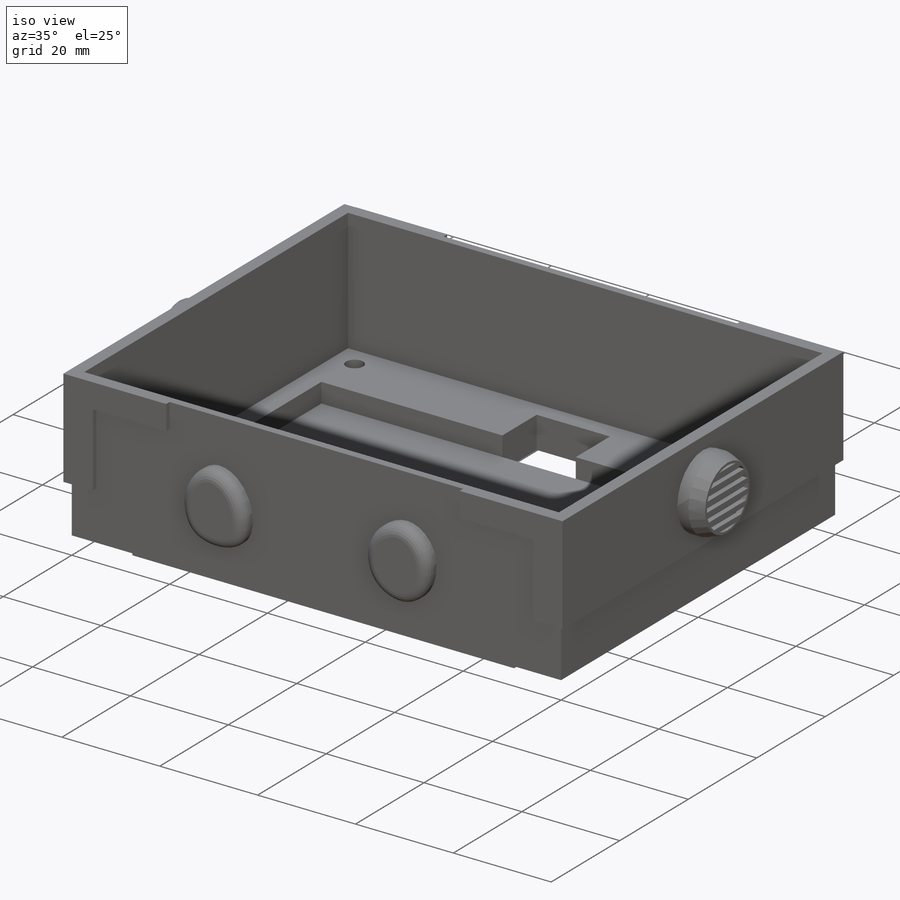
[diagram: iso view]
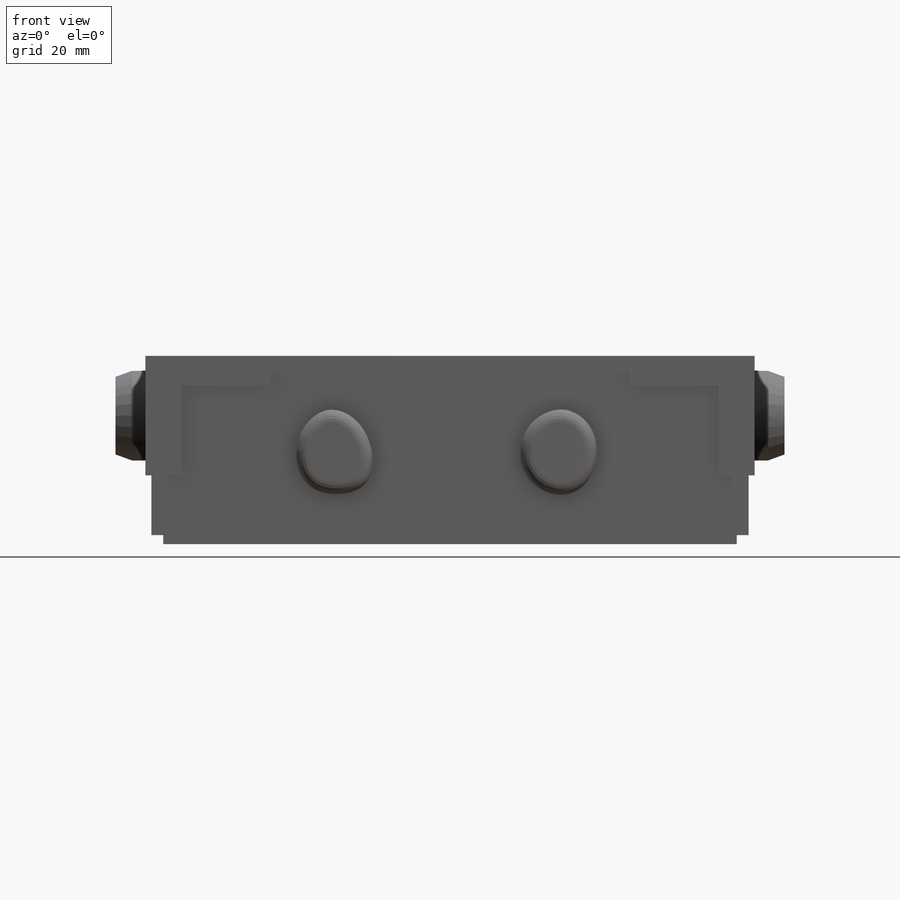
[diagram: front view]
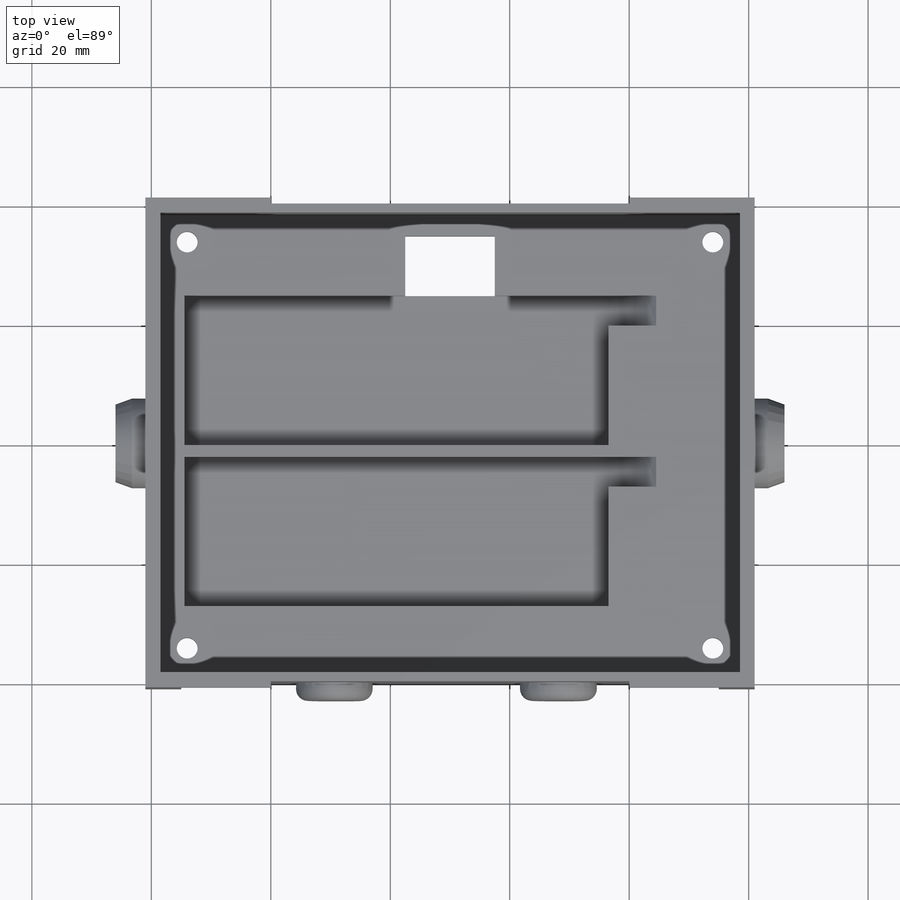
[diagram: top view]
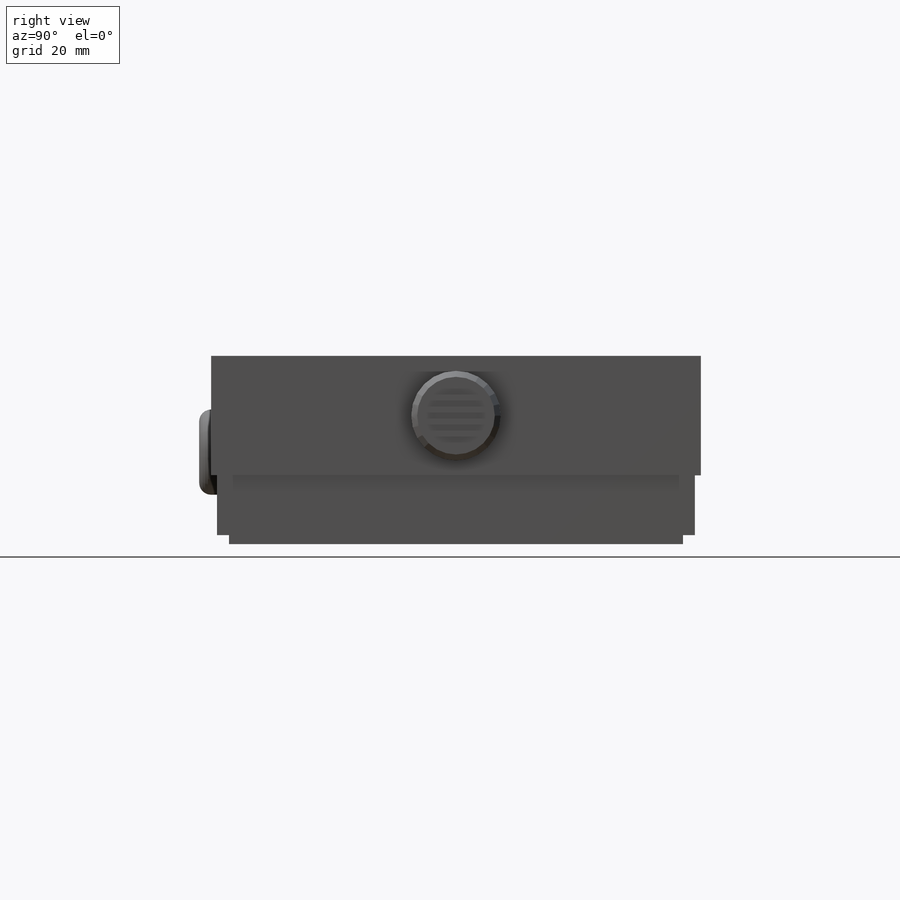
[diagram: right view]
SOLIDWORKS PART (.sldprt)
format: sldprt  version: not decoded by parser v0  size: 689,664 bytes
history: native  units: mm
features: sketch x14, extrude x10, cut_extrude x4, plane x3, fillet x2, material x1, chamfer x1 (+10 scaffold rows collapsed)
feature tree (45):
  scaffold x10  (default folders/planes/origin — collapsed)
  material  "Matériau <non spécifié>"
  plane  "Plan de face"
  plane  "Plan de dessus"
  plane  "Plan de droite"
  sketch  "Esquisse1"  dims[D1=80.0mm D2=100.0mm D3=20.0mm D4=39.0mm D5=20.0mm D6=39.0mm D7=15.0mm D8=15.0mm D9=30.0mm D10=30.0mm D11=15.0mm D12=10.0mm D13=42.5mm D14=5.0mm]
  extrude  "Boss.-Extru.2"  Depth=5mm
  sketch  "Esquisse2"  dims[c1.D1=1.5mm c1.D2=1.5mm c1.D3=1.5mm c1.D4=1.5mm c1.D5=9.0mm c1.D6=9.0mm c1.D7=5.0mm c2.D5=10.0mm c2.D7=9.0mm c2.D8=5.0mm c2.D9=3.5mm c2.D10=2.5mm c2.D11=2.5mm c2.D12=1.5mm]
  extrude  "Boss.-Extru.3"  Depth=25mm
  sketch  "Esquisse9"  dims[D1=2.0mm D2=2.0mm D3=2.0mm D4=2.0mm D5=9.0mm D6=9.0mm D7=9.0mm D8=9.0mm D9=9.0mm D10=9.0mm D11=9.0mm D12=9.0mm]
  extrude  "Boss.-Extru.5"  Depth=1.5mm
  sketch  "Esquisse11"  dims[c1.D1=76.5mm c1.D2=76.5mm c1.D3=25.0mm c1.D4=25.0mm c1.D5=11.5mm c1.D6=25.0mm c2.D6=90.0deg c3.D6=25.0mm c4.D6=90.0deg c5.D6=2.0mm c5.D7=6.5mm c5.D8=8.0mm c5.D9=8.0mm c5.D10=5.0mm c5.D11=5.0mm c5.D2=71.0mm c6.D7=71.0mm]
  cut_extrude  "Enlèv. mat.-Extru.4"  Depth=4mm
  sketch  "Esquisse12"  dims[c1.D1=3.5mm c1.D2=3.5mm c1.D3=3.5mm c1.D4=3.5mm c1.D5=3.5mm c1.D6=3.5mm c1.D7=3.5mm c1.D8=3.5mm c1.D9=3.5mm c1.D10=3.5mm c1.D11=3.5mm c1.D12=3.5mm c2.D2=4.5mm c2.D3=4.5mm c2.D5=4.5mm c2.D6=4.5mm c2.D8=4.5mm c2.D9=4.5mm c2.D11=4.5mm c2.D12=4.5mm]
  cut_extrude  "Enlèv. mat.-Extru.5"  Depth=10mm
  fillet  "Congé1"  Radius=10mm
  sketch  "Esquisse13"  dims[D1=15.0mm D2=15.0mm D3=5.0mm D4=5.0mm D5=5.0mm D6=5.0mm D7=15.0mm D8=15.0mm]
  extrude  "Boss.-Extru.6"  Depth=1mm
  sketch  "Esquisse14"  dims[D1=5.0mm D2=5.0mm D3=15.0mm D4=15.0mm D5=5.0mm D6=5.0mm D7=15.0mm D8=15.0mm]
  extrude  "Boss.-Extru.7"  Depth=1mm
  sketch  "Esquisse15"
  extrude  "Boss.-Extru.8"  Depth=1mm
  sketch  "Esquisse16"
  extrude  "Boss.-Extru.9"  Depth=1mm
  sketch  "Esquisse17"
  extrude  "Boss.-Extru.10"  Depth=3mm
  fillet  "Congé2"  Radius=2mm
  sketch  "Esquisse18"  dims[c1.D1=15.0mm c1.D2=15.0mm c1.D3=15.0mm c2.D2=41.0mm c2.D3=10.0mm]
  extrude  "Boss.-Extru.11"  Depth=5mm
  sketch  "Esquisse19"  dims[D1=12.0mm D2=8.0mm D3=4.0mm D4=11.0mm D5=5.5mm D6=13.0mm D7=6.5mm D8=1.0mm D9=1.0mm D10=1.0mm D11=13.0mm D12=6.5mm D13=1.0mm D14=1.0mm D15=1.0mm D16=11.0mm D17=5.5mm D18=8.0mm D19=4.0mm D20=0.5mm D21=0.5mm D22=2.5mm D23=2.5mm D24=4.5mm D25=4.5mm]
  cut_extrude  "Enlèv. mat.-Extru.6"  Depth=1mm
  sketch  "Esquisse20"  dims[c1.D1=15.0mm c1.D2=15.0mm c1.D3=15.0mm c2.D2=15.0mm c2.D3=15.0mm c3.D2=41.0mm c3.D3=10.0mm c4.D2=41.0mm c4.D3=10.0mm]
  extrude  "Boss.-Extru.12"  Depth=5mm
  sketch  "Esquisse21"  dims[c1.D1=12.0mm c1.D3=6.0mm c1.D2=8.0mm c2.D3=4.0mm c2.D4=11.0mm c2.D5=5.5mm c2.D6=13.0mm c2.D7=6.5mm c2.D8=1.0mm c2.D9=1.0mm c2.D10=1.0mm c2.D11=13.0mm c2.D12=6.5mm c2.D13=1.0mm c2.D14=1.0mm c2.D15=1.0mm c2.D16=11.0mm c2.D17=5.5mm c2.D18=8.0mm c2.D19=4.0mm c2.D20=0.5mm c2.D21=0.5mm c2.D22=2.5mm c2.D23=2.5mm c2.D24=4.5mm c2.D25=4.5mm]
  cut_extrude  "Enlèv. mat.-Extru.7"  Depth=1mm
  chamfer  "Chanfrein1"  Distance=1mm Angle=70deg
decode coverage: 28 of 31 modeling features carry decoded parameters
note: suppression state not decoded; provenance and decode notes live in map.json
